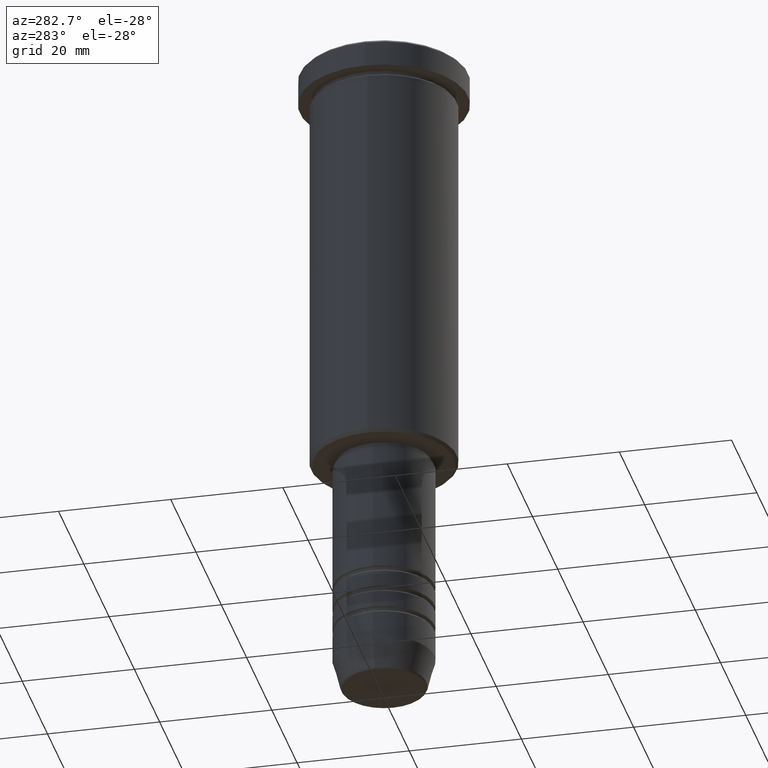
[diagram: clean part render]
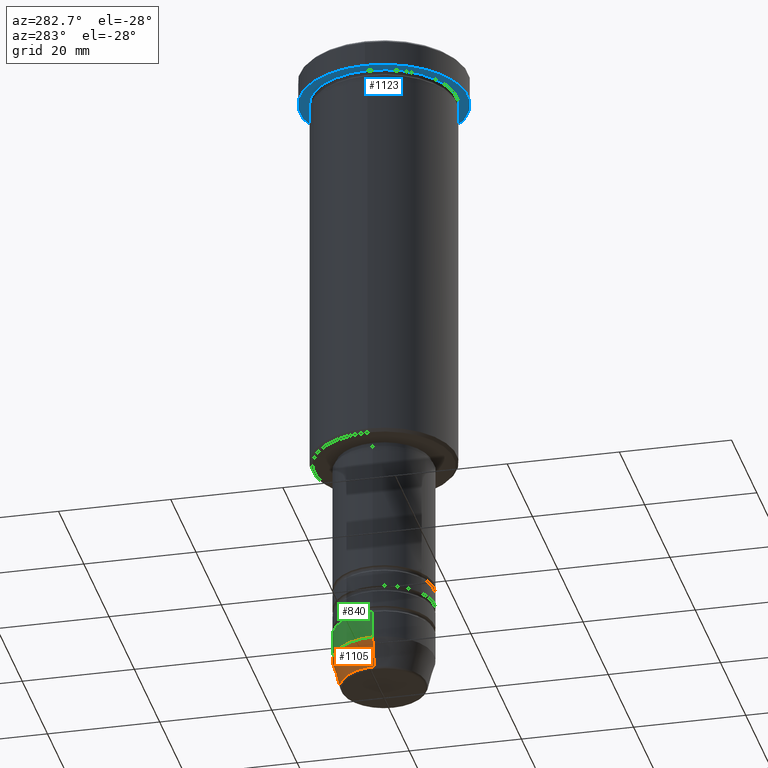
[diagram: same view with three faces highlighted in distinct colors, each labeled with its STEP entity id]
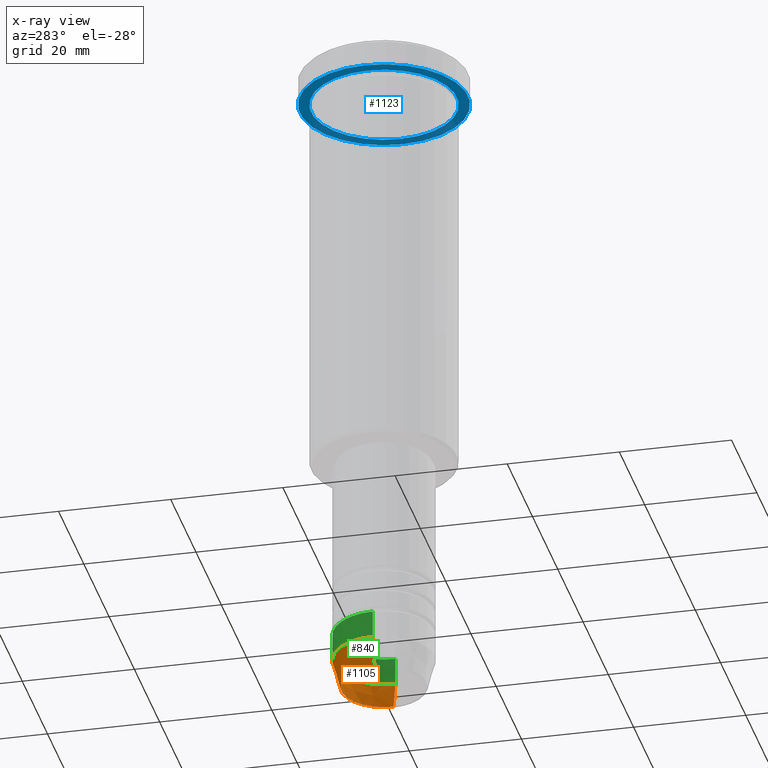
[diagram: x-ray of the same camera — body ghosted, the three highlighted faces saturated]
A machine part, auxiliary view with three faces highlighted in distinct colors.
The next image is the same camera in x-ray (body ghosted, the three faces saturated) — at least one of them is partly hidden behind the body in this view.
Their STEP definitions:

[orange] entity #1105 — the highlighted conical surface has half-angle 15 deg.
#4 = DIRECTION ( 'NONE',  ( -0.000000000000000000, -0.000000000000000000, 1.000000000000000000 ) ) ;
#41 = ORIENTED_EDGE ( 'NONE', *, *, #956, .T. ) ;
#78 = VERTEX_POINT ( 'NONE', #356 ) ;
#112 = CARTESIAN_POINT ( 'NONE',  ( -9.000000000000001776, 1.102182119232617911E-15, -114.4999999999999858 ) ) ;
#117 = AXIS2_PLACEMENT_3D ( 'NONE', #658, #1115, #766 ) ;
#157 = LINE ( 'NONE', #162, #382 ) ;
#162 = CARTESIAN_POINT ( 'NONE',  ( 9.000000000000001776, 0.000000000000000000, -114.4999999999999858 ) ) ;
#197 = ORIENTED_EDGE ( 'NONE', *, *, #1120, .F. ) ;
#198 = CARTESIAN_POINT ( 'NONE',  ( 0.000000000000000000, 0.000000000000000000, -119.6294095225512422 ) ) ;
#254 = CIRCLE ( 'NONE', #590, 7.625578860783879698 ) ;
#257 = EDGE_CURVE ( 'NONE', #974, #709, #915, .T. ) ;
#356 = CARTESIAN_POINT ( 'NONE',  ( 7.625578860783879698, 0.000000000000000000, -119.6294095225512422 ) ) ;
#381 = VECTOR ( 'NONE', #480, 1000.000000000000000 ) ;
#382 = VECTOR ( 'NONE', #525, 1000.000000000000000 ) ;
#480 = DIRECTION ( 'NONE',  ( -0.2588190451025214056, 3.169619151431772953E-17, 0.9659258262890680902 ) ) ;
#512 = EDGE_CURVE ( 'NONE', #78, #828, #157, .T. ) ;
#525 = DIRECTION ( 'NONE',  ( 0.2588190451025214056, 0.000000000000000000, 0.9659258262890680902 ) ) ;
#555 = CIRCLE ( 'NONE', #117, 9.000000000000001776 ) ;
#560 = CARTESIAN_POINT ( 'NONE',  ( -7.625578860783880586, 1.018023096791544096E-15, -119.6294095225512422 ) ) ;
#590 = AXIS2_PLACEMENT_3D ( 'NONE', #198, #910, #811 ) ;
#591 = ORIENTED_EDGE ( 'NONE', *, *, #512, .F. ) ;
#658 = CARTESIAN_POINT ( 'NONE',  ( 0.000000000000000000, 0.000000000000000000, -114.4999999999999858 ) ) ;
#709 = VERTEX_POINT ( 'NONE', #947 ) ;
#754 = DIRECTION ( 'NONE',  ( 1.000000000000000000, 0.000000000000000000, 0.000000000000000000 ) ) ;
#766 = DIRECTION ( 'NONE',  ( 1.000000000000000000, 0.000000000000000000, 0.000000000000000000 ) ) ;
#795 = ORIENTED_EDGE ( 'NONE', *, *, #257, .T. ) ;
#811 = DIRECTION ( 'NONE',  ( 1.000000000000000000, 0.000000000000000000, 0.000000000000000000 ) ) ;
#828 = VERTEX_POINT ( 'NONE', #885 ) ;
#885 = CARTESIAN_POINT ( 'NONE',  ( 9.000000000000001776, 0.000000000000000000, -114.4999999999999858 ) ) ;
#910 = DIRECTION ( 'NONE',  ( -0.000000000000000000, -0.000000000000000000, 1.000000000000000000 ) ) ;
#915 = LINE ( 'NONE', #112, #381 ) ;
#920 = CARTESIAN_POINT ( 'NONE',  ( 0.000000000000000000, 0.000000000000000000, -114.4999999999999858 ) ) ;
#947 = CARTESIAN_POINT ( 'NONE',  ( -9.000000000000001776, 1.102182119232617911E-15, -114.4999999999999858 ) ) ;
#956 = EDGE_CURVE ( 'NONE', #78, #974, #254, .T. ) ;
#974 = VERTEX_POINT ( 'NONE', #560 ) ;
#1032 = EDGE_LOOP ( 'NONE', ( #41, #795, #197, #591 ) ) ;
#1061 = AXIS2_PLACEMENT_3D ( 'NONE', #920, #4, #754 ) ;
#1088 = FACE_OUTER_BOUND ( 'NONE', #1032, .T. ) ;
#1099 = CONICAL_SURFACE ( 'NONE', #1061, 9.000000000000001776, 0.2617993877991501295 ) ;
#1105 = ADVANCED_FACE ( 'NONE', ( #1088 ), #1099, .T. ) ;
#1115 = DIRECTION ( 'NONE',  ( -0.000000000000000000, -0.000000000000000000, 1.000000000000000000 ) ) ;
#1120 = EDGE_CURVE ( 'NONE', #828, #709, #555, .T. ) ;

[blue] entity #1123 — the highlighted planar face has unit normal (0, 0, -1).
#8 = ORIENTED_EDGE ( 'NONE', *, *, #988, .F. ) ;
#15 = AXIS2_PLACEMENT_3D ( 'NONE', #976, #72, #906 ) ;
#26 = VERTEX_POINT ( 'NONE', #785 ) ;
#34 = CIRCLE ( 'NONE', #15, 15.00000000000000000 ) ;
#45 = VERTEX_POINT ( 'NONE', #878 ) ;
#47 = EDGE_CURVE ( 'NONE', #45, #1000, #758, .T. ) ;
#72 = DIRECTION ( 'NONE',  ( -0.000000000000000000, -0.000000000000000000, 1.000000000000000000 ) ) ;
#81 = DIRECTION ( 'NONE',  ( -0.000000000000000000, -0.000000000000000000, 1.000000000000000000 ) ) ;
#159 = FACE_OUTER_BOUND ( 'NONE', #1009, .T. ) ;
#177 = AXIS2_PLACEMENT_3D ( 'NONE', #924, #831, #1082 ) ;
#187 = AXIS2_PLACEMENT_3D ( 'NONE', #425, #492, #250 ) ;
#223 = DIRECTION ( 'NONE',  ( -1.000000000000000000, 0.000000000000000000, -0.000000000000000000 ) ) ;
#250 = DIRECTION ( 'NONE',  ( -1.000000000000000000, 0.000000000000000000, 0.000000000000000000 ) ) ;
#314 = PLANE ( 'NONE',  #385 ) ;
#385 = AXIS2_PLACEMENT_3D ( 'NONE', #696, #793, #223 ) ;
#425 = CARTESIAN_POINT ( 'NONE',  ( 0.000000000000000000, 0.000000000000000000, -4.999999999999999112 ) ) ;
#432 = DIRECTION ( 'NONE',  ( -1.000000000000000000, 0.000000000000000000, 0.000000000000000000 ) ) ;
#436 = CIRCLE ( 'NONE', #1098, 13.00000000000000000 ) ;
#440 = CARTESIAN_POINT ( 'NONE',  ( 0.000000000000000000, 0.000000000000000000, -4.999999999999999112 ) ) ;
#476 = EDGE_CURVE ( 'NONE', #26, #996, #34, .T. ) ;
#485 = EDGE_CURVE ( 'NONE', #1000, #45, #436, .T. ) ;
#492 = DIRECTION ( 'NONE',  ( -0.000000000000000000, -0.000000000000000000, 1.000000000000000000 ) ) ;
#617 = ORIENTED_EDGE ( 'NONE', *, *, #47, .T. ) ;
#656 = EDGE_LOOP ( 'NONE', ( #617, #1055 ) ) ;
#696 = CARTESIAN_POINT ( 'NONE',  ( 0.000000000000000000, 15.00000000000000000, -4.999999999999999112 ) ) ;
#748 = CARTESIAN_POINT ( 'NONE',  ( 13.00000000000000000, 1.592040838891559095E-15, -4.999999999999999112 ) ) ;
#758 = CIRCLE ( 'NONE', #187, 13.00000000000000000 ) ;
#785 = CARTESIAN_POINT ( 'NONE',  ( -15.00000000000000000, 1.836970198721029589E-15, -4.999999999999999112 ) ) ;
#793 = DIRECTION ( 'NONE',  ( 0.000000000000000000, 0.000000000000000000, -1.000000000000000000 ) ) ;
#825 = CARTESIAN_POINT ( 'NONE',  ( 15.00000000000000000, 0.000000000000000000, -4.999999999999999112 ) ) ;
#831 = DIRECTION ( 'NONE',  ( -0.000000000000000000, -0.000000000000000000, 1.000000000000000000 ) ) ;
#857 = CIRCLE ( 'NONE', #177, 15.00000000000000000 ) ;
#878 = CARTESIAN_POINT ( 'NONE',  ( -13.00000000000000000, 0.000000000000000000, -4.999999999999999112 ) ) ;
#886 = ORIENTED_EDGE ( 'NONE', *, *, #476, .F. ) ;
#906 = DIRECTION ( 'NONE',  ( 1.000000000000000000, 0.000000000000000000, 0.000000000000000000 ) ) ;
#924 = CARTESIAN_POINT ( 'NONE',  ( 0.000000000000000000, 0.000000000000000000, -4.999999999999999112 ) ) ;
#973 = FACE_BOUND ( 'NONE', #656, .T. ) ;
#976 = CARTESIAN_POINT ( 'NONE',  ( 0.000000000000000000, 0.000000000000000000, -4.999999999999999112 ) ) ;
#988 = EDGE_CURVE ( 'NONE', #996, #26, #857, .T. ) ;
#996 = VERTEX_POINT ( 'NONE', #825 ) ;
#1000 = VERTEX_POINT ( 'NONE', #748 ) ;
#1009 = EDGE_LOOP ( 'NONE', ( #8, #886 ) ) ;
#1055 = ORIENTED_EDGE ( 'NONE', *, *, #485, .T. ) ;
#1082 = DIRECTION ( 'NONE',  ( 1.000000000000000000, 0.000000000000000000, 0.000000000000000000 ) ) ;
#1098 = AXIS2_PLACEMENT_3D ( 'NONE', #440, #81, #432 ) ;
#1123 = ADVANCED_FACE ( 'NONE', ( #973, #159 ), #314, .T. ) ;

[green] entity #840 — the highlighted cylindrical surface (partial cylindrical patch) has radius 9 mm, axis along (-0, -0, 1).
#7 = ORIENTED_EDGE ( 'NONE', *, *, #967, .F. ) ;
#9 = DIRECTION ( 'NONE',  ( -0.000000000000000000, -0.000000000000000000, 1.000000000000000000 ) ) ;
#16 = CIRCLE ( 'NONE', #683, 9.000000000000000000 ) ;
#106 = VERTEX_POINT ( 'NONE', #266 ) ;
#117 = AXIS2_PLACEMENT_3D ( 'NONE', #658, #1115, #766 ) ;
#128 = CARTESIAN_POINT ( 'NONE',  ( 9.000000000000000000, 0.000000000000000000, -109.4999999999999858 ) ) ;
#167 = CYLINDRICAL_SURFACE ( 'NONE', #627, 9.000000000000001776 ) ;
#222 = ORIENTED_EDGE ( 'NONE', *, *, #903, .T. ) ;
#242 = ORIENTED_EDGE ( 'NONE', *, *, #829, .F. ) ;
#262 = DIRECTION ( 'NONE',  ( 1.000000000000000000, 0.000000000000000000, 0.000000000000000000 ) ) ;
#266 = CARTESIAN_POINT ( 'NONE',  ( -9.000000000000000000, 1.102182119232617714E-15, -109.4999999999999858 ) ) ;
#272 = VECTOR ( 'NONE', #899, 1000.000000000000000 ) ;
#343 = CARTESIAN_POINT ( 'NONE',  ( -9.000000000000001776, 1.102182119232617911E-15, 0.000000000000000000 ) ) ;
#469 = CARTESIAN_POINT ( 'NONE',  ( 9.000000000000001776, 0.000000000000000000, 0.000000000000000000 ) ) ;
#537 = LINE ( 'NONE', #343, #272 ) ;
#551 = ORIENTED_EDGE ( 'NONE', *, *, #1120, .T. ) ;
#555 = CIRCLE ( 'NONE', #117, 9.000000000000001776 ) ;
#600 = DIRECTION ( 'NONE',  ( -0.000000000000000000, -0.000000000000000000, 1.000000000000000000 ) ) ;
#627 = AXIS2_PLACEMENT_3D ( 'NONE', #1165, #600, #1171 ) ;
#644 = LINE ( 'NONE', #469, #745 ) ;
#658 = CARTESIAN_POINT ( 'NONE',  ( 0.000000000000000000, 0.000000000000000000, -114.4999999999999858 ) ) ;
#661 = EDGE_LOOP ( 'NONE', ( #551, #222, #242, #7 ) ) ;
#683 = AXIS2_PLACEMENT_3D ( 'NONE', #1157, #804, #262 ) ;
#709 = VERTEX_POINT ( 'NONE', #947 ) ;
#745 = VECTOR ( 'NONE', #9, 1000.000000000000000 ) ;
#766 = DIRECTION ( 'NONE',  ( 1.000000000000000000, 0.000000000000000000, 0.000000000000000000 ) ) ;
#804 = DIRECTION ( 'NONE',  ( -0.000000000000000000, -0.000000000000000000, 1.000000000000000000 ) ) ;
#828 = VERTEX_POINT ( 'NONE', #885 ) ;
#829 = EDGE_CURVE ( 'NONE', #1175, #106, #16, .T. ) ;
#840 = ADVANCED_FACE ( 'NONE', ( #1071 ), #167, .T. ) ;
#885 = CARTESIAN_POINT ( 'NONE',  ( 9.000000000000001776, 0.000000000000000000, -114.4999999999999858 ) ) ;
#899 = DIRECTION ( 'NONE',  ( -0.000000000000000000, -0.000000000000000000, 1.000000000000000000 ) ) ;
#903 = EDGE_CURVE ( 'NONE', #709, #106, #537, .T. ) ;
#947 = CARTESIAN_POINT ( 'NONE',  ( -9.000000000000001776, 1.102182119232617911E-15, -114.4999999999999858 ) ) ;
#967 = EDGE_CURVE ( 'NONE', #828, #1175, #644, .T. ) ;
#1071 = FACE_OUTER_BOUND ( 'NONE', #661, .T. ) ;
#1115 = DIRECTION ( 'NONE',  ( -0.000000000000000000, -0.000000000000000000, 1.000000000000000000 ) ) ;
#1120 = EDGE_CURVE ( 'NONE', #828, #709, #555, .T. ) ;
#1157 = CARTESIAN_POINT ( 'NONE',  ( 0.000000000000000000, 0.000000000000000000, -109.4999999999999858 ) ) ;
#1165 = CARTESIAN_POINT ( 'NONE',  ( 0.000000000000000000, 0.000000000000000000, 0.000000000000000000 ) ) ;
#1171 = DIRECTION ( 'NONE',  ( 1.000000000000000000, 0.000000000000000000, 0.000000000000000000 ) ) ;
#1175 = VERTEX_POINT ( 'NONE', #128 ) ;